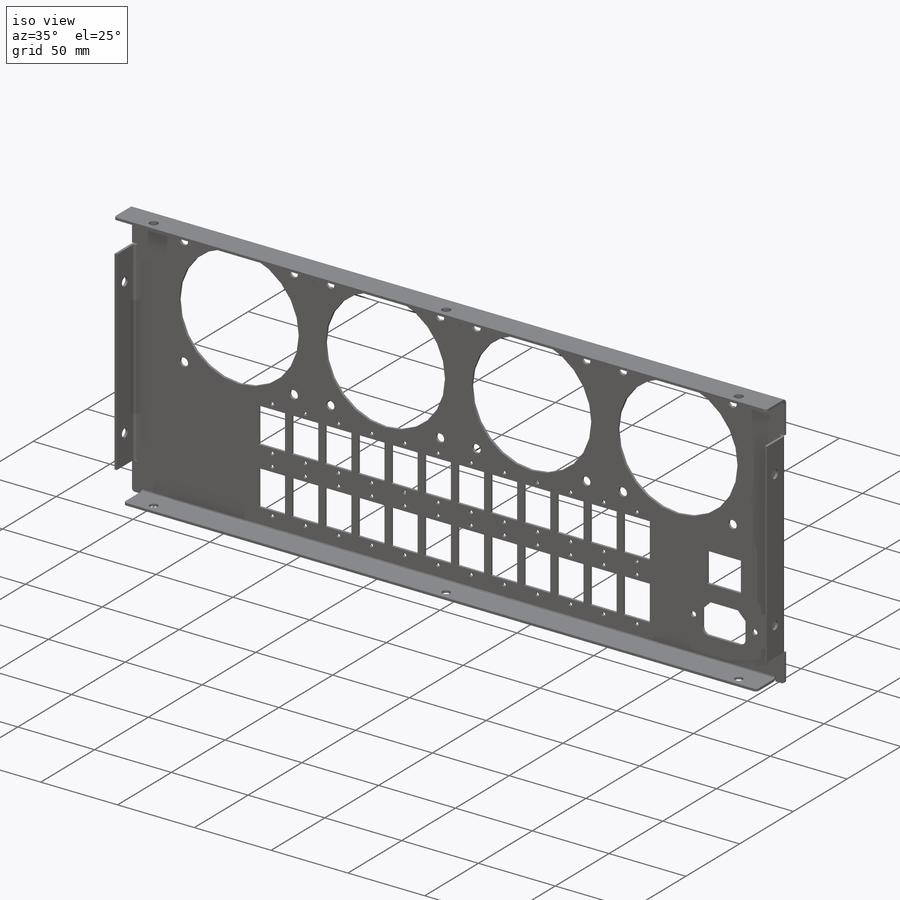
[diagram: iso view]
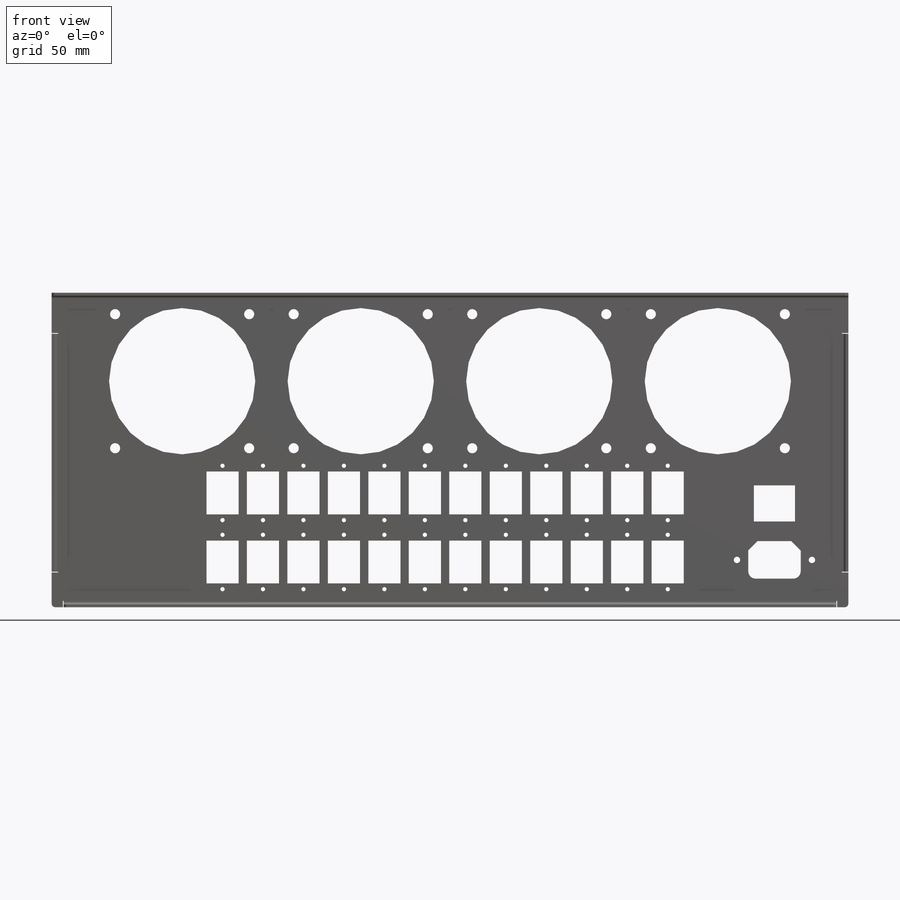
[diagram: front view]
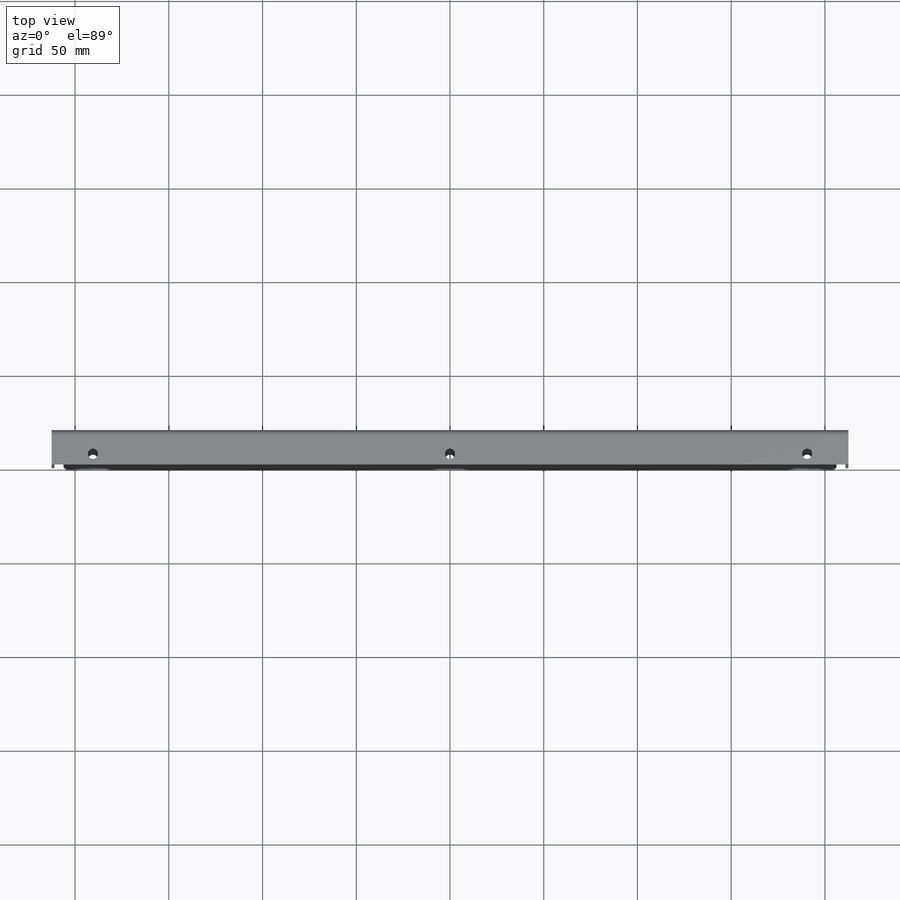
[diagram: top view]
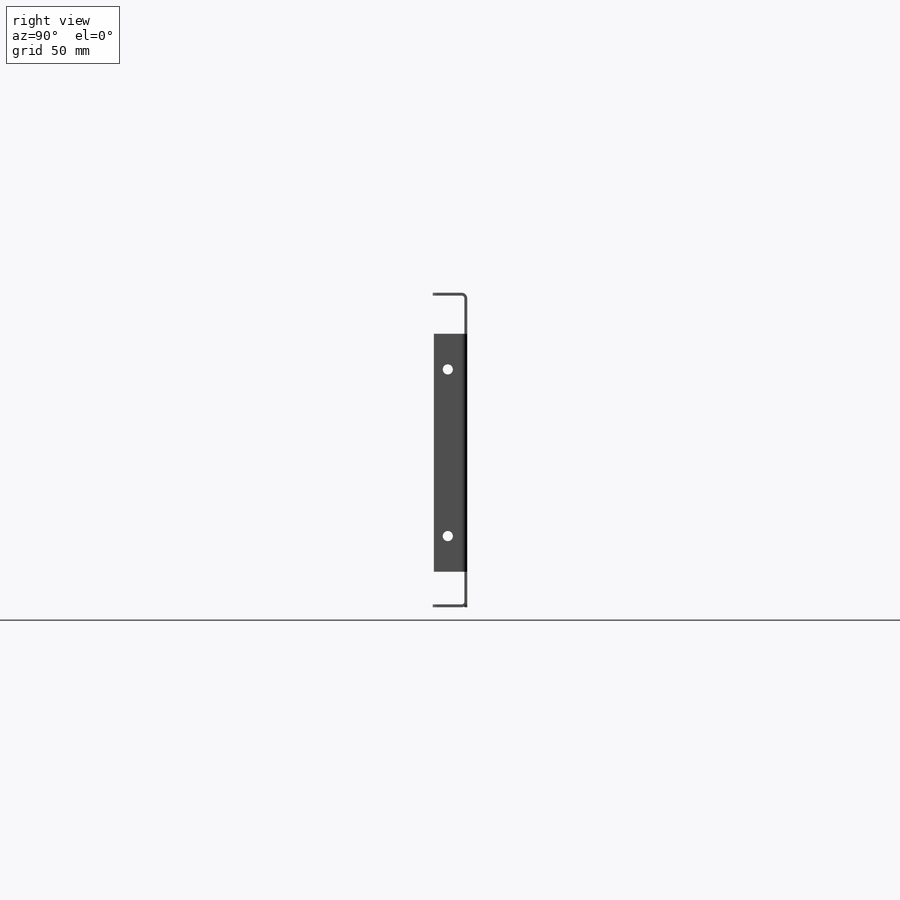
[diagram: right view]
SOLIDWORKS PART (.sldprt)
format: sldprt  version: not decoded by parser v0  size: 1,069,568 bytes
history: native  units: mm
features: sketch x15, cut_extrude x6, pattern_linear x4, sheet_metal_op x2, hole x2, material x1, fillet x1, mirror x1 + 1 further entry (+12 scaffold rows collapsed; 1 parser-record rows omitted)
feature tree (46):
  scaffold x12  (default folders/planes/origin — collapsed)
  material  "Material <not specified>"
  sketch  "Sketch1"  dims[D1=18.3642mm D2=167.7416mm]
  sheet_metal_op  "Sheet-Metal1"
  sheet_metal_op  "Base-Flange1"
  sketch  "Sketch5"  dims[c1.D1=6.35mm c1.D2=6.35mm c2.D1=1.397mm c2.D4=90.0deg c2.D5=2.0 c2.D8=0.6096mm c2.D9=0.6096mm c3.D1=1.27mm c3.D2=500.0mm c3.D3=0.0mm c3.D6=10.0mm c3.D7=18.3642mm]
  sketch  "Sketch12"  dims[c1.D1=127.0mm c2.D1=1.397mm c2.D4=90.0deg c2.D5=3.0 c2.D8=0.3048mm c2.D9=0.3048mm c3.D1=1.397mm c3.D2=500.0mm c3.D3=0.0mm c3.D6=10.0mm c3.D7=17.78mm]
  fillet  "Fillet1"  Radius=1.905mm
  sketch  "Sketch6"  dims[D1=4.953mm]
  mirror  "Mirror7"
  cut_extrude  "Cut-Extrude2"  [1 undecoded]
  sketch  "Sketch7"  dims[D1=5.4102mm]
  cut_extrude  "Cut-Extrude3"  [1 undecoded]
  sketch  "Sketch8"  dims[c1.D1=5.3848mm c1.D4=78.0034mm c1.D2=71.5mm c1.D3=71.5mm c1.D5=5.3848mm c1.D8=78.0034mm c2.D1=121.92mm c2.D2=69.85mm c2.D3=165.1mm c2.D4=260.35mm c2.D5=355.6mm c2.D6=71.501mm c2.D7=71.501mm c3.D5=~264.002704mm c3.D1=47.1678mm c3.D2=95.25mm c3.D3=95.25mm c3.D4=95.25mm]
  cut_extrude  "Cut-Extrude7"  [1 undecoded]
  sketch  "Sketch9"  dims[c1.D3=2.2606mm c1.D4=~3.399993mm c1.D5=~4.000017mm c1.D6=~0.253898mm c2.D3=4.572mm c2.D4=~7.599693mm c2.D1=0.0mm c2.D2=0.0mm c2.D7=~22.089999mm c2.D8=~30.662499mm c2.D9=~39.234999mm c2.D10=~61.074351mm c2.D11=~69.646851mm c2.D12=~78.219351mm c2.D13=~86.474351mm c2.D14=~95.046851mm c2.D15=~103.619351mm c2.D16=~111.874351mm c2.D17=~120.446851mm c2.D18=~129.019351mm c2.D19=~137.274351mm c2.D20=~145.846851mm c2.D21=~154.419351mm c2.D22=~162.674351mm c2.D23=~171.246851mm c2.D24=~179.819351mm c2.D25=~188.074351mm c2.D26=~196.646851mm c2.D27=~205.219351mm c2.D28=~213.474351mm c2.D29=~222.046851mm c2.D30=~230.619351mm c2.D31=~238.874351mm c2.D32=~247.446851mm c2.D33=~256.019351mm c2.D34=~264.274351mm c2.D35=~272.846851mm c2.D36=~281.419351mm c2.D37=~289.674351mm c2.D38=~298.246851mm c2.D39=~306.819351mm c2.D40=~315.074351mm c2.D41=~323.646851mm c2.D42=~332.219351mm c2.D43=~340.474351mm c2.D44=~349.046851mm c2.D45=~357.619351mm c2.D46=~372.226865mm c2.D47=~378.639426mm c2.D48=~378.71379mm c2.D49=~378.893324mm c2.D50=~380.492051mm c2.D51=~383.565075mm c2.D52=~383.744609mm c2.D53=~400.709143mm c2.D54=~400.888677mm c2.D55=~402.386851mm c2.D56=~405.560428mm c2.D57=~405.739963mm c2.D58=~405.814327mm c2.D59=~412.226862mm c3.D7=~22.089999mm c3.D9=~39.234999mm c3.D10=~61.074351mm c3.D12=~86.474351mm c3.D13=~111.874351mm c3.D15=~137.274351mm c3.D16=~162.674351mm c3.D18=~188.074351mm c3.D19=~213.474351mm c3.D21=~238.874351mm c3.D22=~264.274351mm c3.D24=~289.674351mm c3.D25=~315.074351mm c3.D27=~340.474351mm c3.D28=~378.639426mm c3.D30=~378.71379mm c3.D31=~383.565075mm c3.D33=~400.709143mm c3.D34=~17.863845mm c3.D36=~22.002039mm c3.D37=~22.275851mm c3.D39=~25.050039mm c3.D40=~25.323851mm c3.D42=~27.863851mm c3.D43=~32.758624mm c3.D45=~32.938156mm c3.D47=~37.609958mm c3.D48=~37.78949mm c3.D49=~37.863856mm c3.D51=~45.593051mm c3.D52=~47.910039mm c3.D53=~48.183851mm c3.D54=~50.958039mm c3.D56=~51.231851mm c3.D57=~64.693851mm c4.D39=~25.050039mm c4.D40=~25.323851mm c4.D43=~32.758624mm c4.D45=~47.910039mm c4.D4=22.86mm c4.D5=17.145mm c4.D6=29.0068mm c4.D7=17.145mm c4.D3=12.7mm c5.D6=82.55mm]
  cut_extrude  "Cut-Extrude8"  [1 undecoded]
  hole  "Tap Drill for #4-40 Tap1"  Diameter=2.2606mm Depth=1.524mm
  sketch  "Sketch14"  dims[D1=29.0068mm]
  sketch  "Sketch13"  dims[hole-wizard template sketch: 59 standard entries collapsed; hole parameters kept: c18.Thru Hole Dia.=2.2606mm c18.Thru Hole Depth=1.524mm]
  pattern_linear  "LPattern1"  Count1=2 Count2=12 Spacing1=36.83mm Spacing2=21.59mm
  sketch  "Sketch15"  dims[D3=4.0mm D1=28.0mm D2=20.0mm D4=15.24mm D5=25.4mm D6=19.3mm D9=21.9mm D10=45.72mm]
  cut_extrude  "Cut-Extrude9"  [1 undecoded]
  hole  "Ø3.4 (3.4) Diameter Hole2"  Diameter=3.4mm Depth=1.524mm
  sketch  "Sketch17"  dims[D1=40.0mm]
  sketch  "Sketch16"  dims[hole-wizard template sketch: 60 standard entries collapsed; hole parameters kept: c18.Thru Hole Depth=1.524mm]
  sketch  "Sketch18"  dims[D1=5.4102mm D2=88.9mm]
  cut_extrude  "Cut-Extrude10"  [1 undecoded]
  "Flat-Pattern1"
  sketch  "Bend-Lines1"
  sketch  "Bounding-Box1"
  pattern_linear  "Flatten-<EdgeBend1>1"  [2 undecoded]
  pattern_linear  "Flatten-<EdgeBend2>1"  [2 undecoded]
  pattern_linear  "Flatten-<MirrorBend1>1"  [2 undecoded]
  parser-record x1  (decoder bookkeeping rows leaked as tree rows — omitted from the tree; the rows remain in map.json)
decode coverage: 17 of 31 modeling features carry decoded parameters; 1 rows unclassified (native names shown)
note: ~ marks probable driven/reference dimensions
note: 12 parameter values undecoded
summary: no parameter record found for 6 features
note: suppression state not decoded; provenance and decode notes live in map.json
